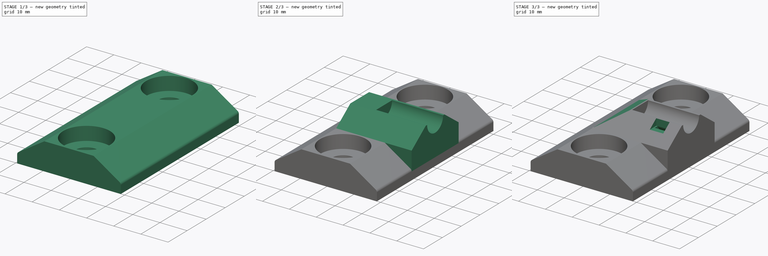
[diagram: build sequence overview — one tinted view per stage of 3, left to right]
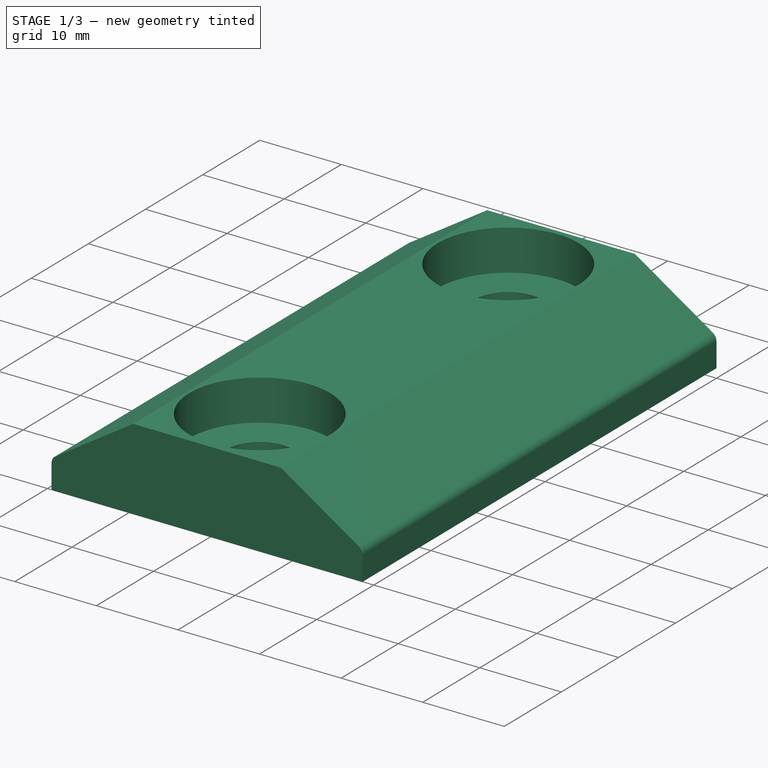
[diagram: stage 1 of 3 — iso view after this stage's code; geometry added in this stage tinted green]
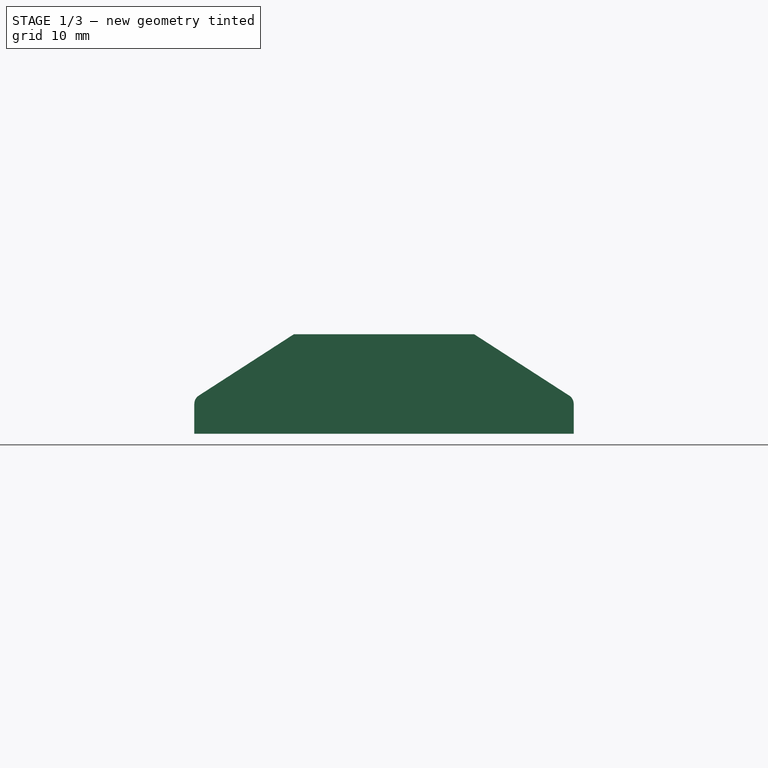
[diagram: stage 1 of 3 — front view after this stage's code; geometry added in this stage tinted green]
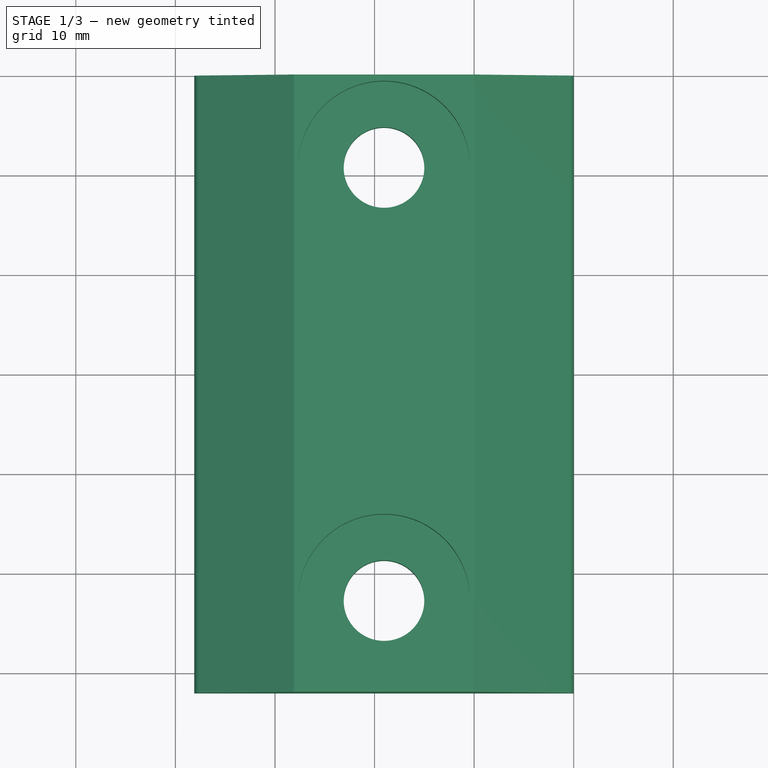
[diagram: stage 1 of 3 — top view after this stage's code; geometry added in this stage tinted green]
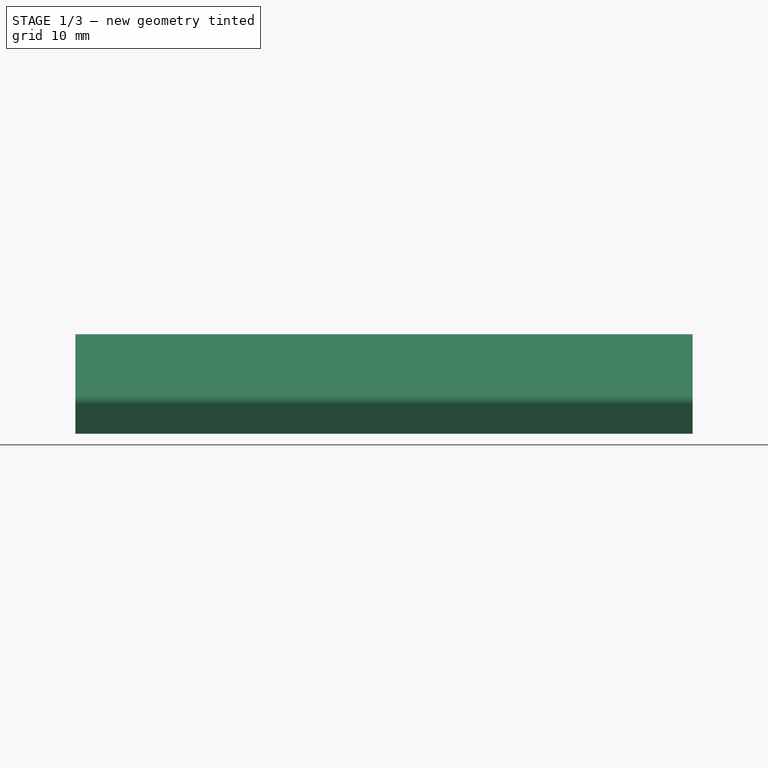
[diagram: stage 1 of 3 — right view after this stage's code; geometry added in this stage tinted green]
FCSTD DOCUMENT  (FreeCAD 0.18R)
Label: y-axis-rod-mount
License: All rights reserved
LicenseURL: http://en.wikipedia.org/wiki/All_rights_reserved
objects: Sketcher::SketchObject×8, PartDesign::Pocket×6, PartDesign::Pad×2, PartDesign::Body×1, Part::Feature×1
note: 26 computed .brp shape members not serialized (recipe doc carries the construction recipe); baked Part::Feature solids carry a one-line shape summary decoded from their .brp

FEATURE [Sketcher::SketchObject] Sketch002  label="Sketch"
  MapMode = 2
  Placement = pos=(0,0,0) rot=(1,0,0;1.5708rad)
  Support = -> [Sketch002]
  sketch-geometry (8):
    g0: LineSegment StartX=-38.1 StartY=3 StartZ=0 EndX=-38.1 EndY=0 EndZ=0
    g1: LineSegment StartX=-28.1 StartY=10 StartZ=0 EndX=-10 EndY=10 EndZ=0
    g2: LineSegment StartX=0 StartY=3 StartZ=0 EndX=0 EndY=0 EndZ=0
    g3: LineSegment StartX=-10 StartY=10 StartZ=0 EndX=-0.457656 EndY=3.84016 EndZ=0
    g4: ArcOfCircle CenterX=-1 CenterY=3 CenterZ=0 NormalX=0 NormalY=0 NormalZ=1 AngleXU=0 Radius=1 StartAngle=0 EndAngle=0.997572
    g5: LineSegment StartX=-38.1 StartY=0 StartZ=0 EndX=0 EndY=0 EndZ=0
    g6: LineSegment StartX=-28.1 StartY=10 StartZ=0 EndX=-37.6423 EndY=3.84016 EndZ=0
    g7: ArcOfCircle CenterX=-37.1 CenterY=3 CenterZ=0 NormalX=0 NormalY=0 NormalZ=1 AngleXU=0 Radius=1 StartAngle=2.14402 EndAngle=3.14159
  constraints (22):
    c: DistanceX(g0,g-1) = 38.1
    c: Vertical(g0)
    c: Horizontal(g1)
    c: DistanceY(g0,g1) = 10
    c: Vertical(g2)
    c: Tangent(g3,g4) = 1.5708
    c: Tangent(g2,g4) = 1.5708
    c: Horizontal(g5)
    c: Coincident(g5,g2)
    c: DistanceY(g2,g-1) = 0
    c: Coincident(g0,g5)
    c: DistanceX(g2,g-1) = 0
    c: Coincident(g3,g1)
    c: DistanceX(g1,g2) = 10
    c: DistanceY(g2,g2) = 3
    c: DistanceX(g4,g2) = 1
    c: Coincident(g6,g1)
    c: Tangent(g6,g7) = -1.5708
    c: Tangent(g0,g7) = -1.5708
    c: DistanceY(g4,g7) = 0
    c: DistanceY(g3,g6) = 0
    c: DistanceX(g0,g1) = 10
FEATURE [PartDesign::Pad] Pad
  Length = 62
  Length2 = 100
  Placement = pos=(0,0,0) rot=(1,0,0;1.5708rad)
  Profile = -> Sketch002
  Type = 0
FEATURE [Sketcher::SketchObject] Sketch003
  MapMode = 5
  Support = -> [XY_Plane002]
  sketch-geometry (2):
    g0: Circle CenterX=-19.05 CenterY=-9.25 CenterZ=0 NormalX=0 NormalY=0 NormalZ=1 AngleXU=0 Radius=4.05
    g1: Circle CenterX=-19.05 CenterY=-52.75 CenterZ=0 NormalX=0 NormalY=0 NormalZ=1 AngleXU=0 Radius=4.05
  constraints (6):
    c: Radius(g0) = 4.05
    c: DistanceX(g0,g-1) = 19.05
    c: DistanceY(g0,g-1) = 9.25
    c: Equal(g1,g0)
    c: DistanceX(g0,g1) = 0
    c: DistanceY(g1,g0) = 43.5
FEATURE [PartDesign::Pocket] Pocket
  BaseFeature = -> Pad
  Length = 10
  Length2 = 100
  Midplane = true
  Placement = pos=(0,0,0) rot=(1,0,0;1.5708rad)
  Profile = -> Sketch003
  Type = 1
FEATURE [Sketcher::SketchObject] Sketch  label="Sketch004"
  AttachmentOffset = pos=(0,0,5) rot=(0,0,1;0rad)
  MapMode = 5
  Placement = pos=(0,0,5) rot=(0,0,1;0rad)
  Support = -> [XY_Plane002]
  sketch-geometry (2):
    g0: Circle CenterX=-19.05 CenterY=-9.25 CenterZ=0 NormalX=0 NormalY=0 NormalZ=1 AngleXU=0 Radius=8.625
    g1: Circle CenterX=-19.05 CenterY=-52.75 CenterZ=0 NormalX=0 NormalY=0 NormalZ=1 AngleXU=0 Radius=8.625
  constraints (6):
    c: Radius(g0) = 8.625
    c: DistanceX(g0,g-1) = 19.05
    c: DistanceY(g0,g-1) = 9.25
    c: Equal(g1,g0)
    c: DistanceX(g1,g0) = 0
    c: DistanceY(g1,g0) = 43.5
FEATURE [PartDesign::Pocket] Pocket001
  BaseFeature = -> Pocket
  Length = 5
  Length2 = 5
  Offset = 5
  Placement = pos=(0,0,0) rot=(1,0,0;1.5708rad)
  Profile = -> Sketch
  Reversed = true
  Type = 0
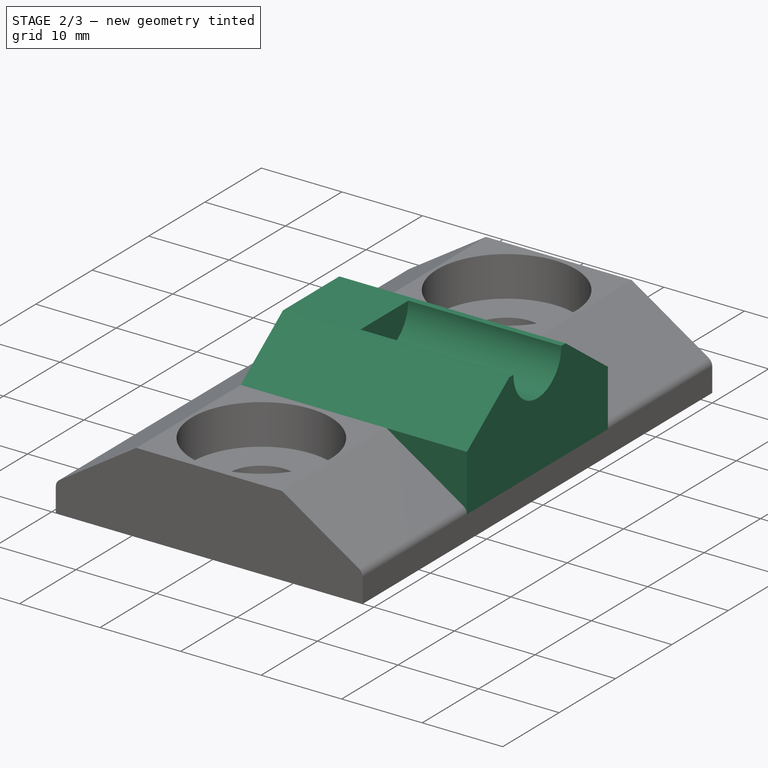
[diagram: stage 2 of 3 — iso view after this stage's code; geometry added in this stage tinted green]
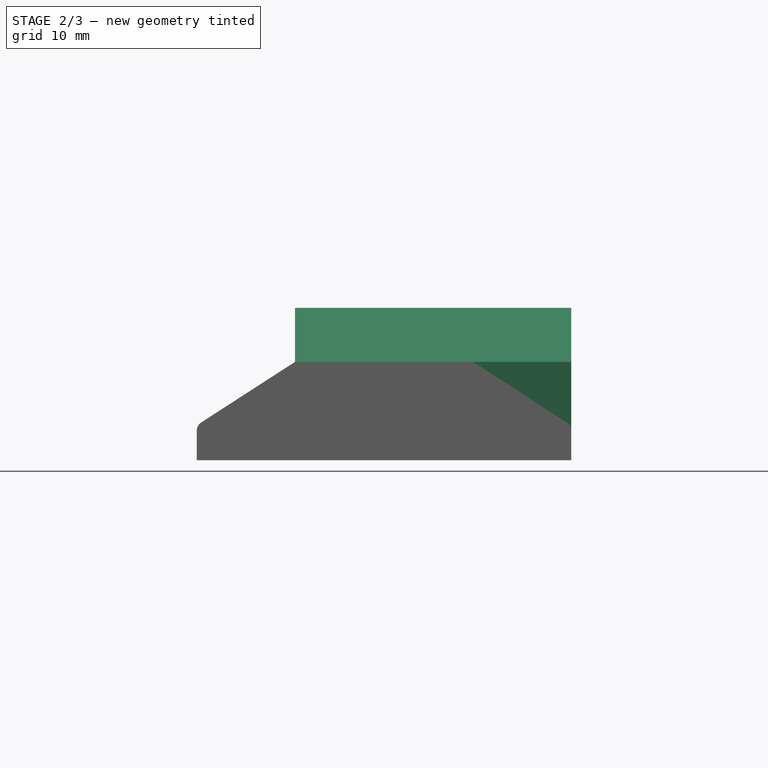
[diagram: stage 2 of 3 — front view after this stage's code; geometry added in this stage tinted green]
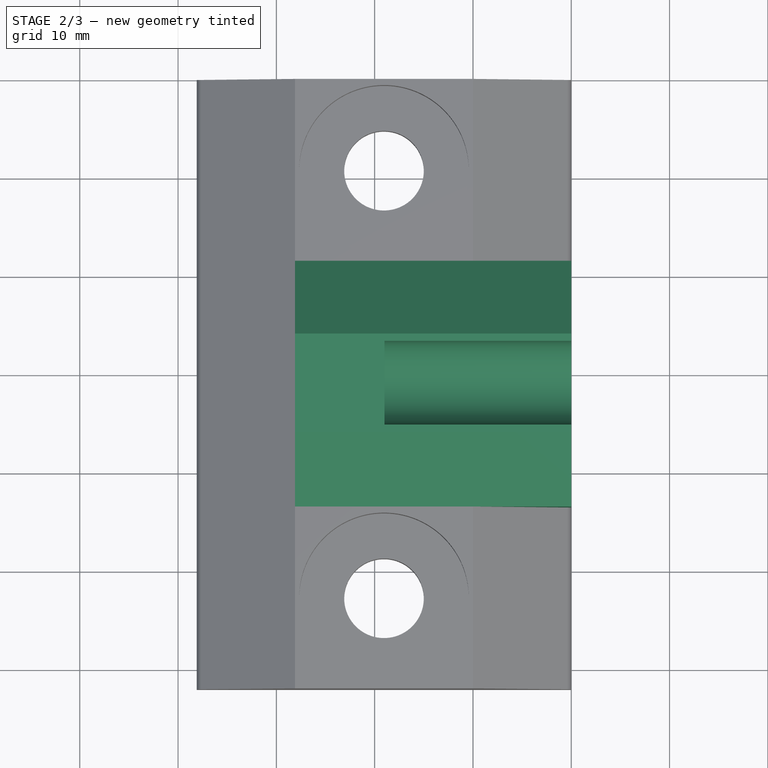
[diagram: stage 2 of 3 — top view after this stage's code; geometry added in this stage tinted green]
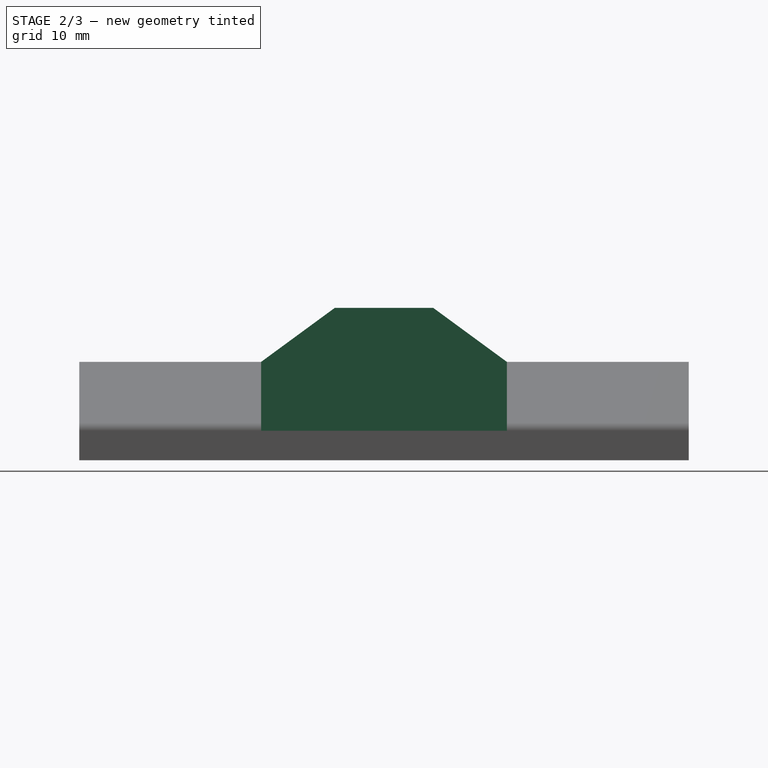
[diagram: stage 2 of 3 — right view after this stage's code; geometry added in this stage tinted green]
FEATURE [Sketcher::SketchObject] Sketch004  label="Sketch005"
  MapMode = 4
  Placement = pos=(0,0,0) rot=(0.57735,0.57735,0.57735;2.0944rad)
  sketch-geometry (6):
    g0: LineSegment StartX=-43.5 StartY=0 StartZ=0 EndX=-43.5 EndY=10 EndZ=0
    g1: LineSegment StartX=-18.5 StartY=10 StartZ=0 EndX=-18.5 EndY=0 EndZ=0
    g2: LineSegment StartX=-43.5 StartY=0 StartZ=0 EndX=-18.5 EndY=0 EndZ=0
    g3: LineSegment StartX=-43.5 StartY=10 StartZ=0 EndX=-36 EndY=15.5 EndZ=0
    g4: LineSegment StartX=-26 StartY=15.5 StartZ=0 EndX=-18.5 EndY=10 EndZ=0
    g5: LineSegment StartX=-36 StartY=15.5 StartZ=0 EndX=-26 EndY=15.5 EndZ=0
  constraints (18):
    c: PointOnObject(g0,g-1)
    c: Vertical(g0)
    c: PointOnObject(g1,g-1)
    c: Vertical(g1)
    c: Coincident(g2,g0)
    c: Equal(g0,g1)
    c: DistanceX(g2,g2) = 25
    c: Coincident(g1,g2)
    c: DistanceX(g1,g-1) = 18.5
    c: DistanceY(g0,g0) = 10
    c: Coincident(g3,g0)
    c: Coincident(g4,g1)
    c: Horizontal(g5)
    c: Coincident(g5,g3)
    c: Equal(g3,g4)
    c: DistanceY(g0,g3) = 15.5
    c: Coincident(g5,g4)
    c: DistanceX(g5,g5) = 10
FEATURE [PartDesign::Pad] Pad001
  BaseFeature = -> Pocket001
  Length = 28.1
  Length2 = 100
  Placement = pos=(0,0,0) rot=(1,0,0;1.5708rad)
  Profile = -> Sketch004
  Reversed = true
  Type = 0
FEATURE [Sketcher::SketchObject] Sketch005  label="Sketch006"
  MapMode = 5
  Placement = pos=(0,0,0) rot=(0.57735,0.57735,0.57735;2.0944rad)
  Support = -> [YZ_Plane002]
  sketch-geometry (2):
    g0: ArcOfCircle CenterX=-31 CenterY=15.5 CenterZ=0 NormalX=0 NormalY=0 NormalZ=1 AngleXU=0 Radius=4.25 StartAngle=3.14159 EndAngle=6.28319
    g1: LineSegment StartX=-35.25 StartY=15.5 StartZ=0 EndX=-26.75 EndY=15.5 EndZ=0
  constraints (7):
    c: DistanceY(g0,g0) = 0
    c: Radius(g0) = 4.25
    c: DistanceX(g0,g-1) = 31
    c: DistanceY(g-1,g0) = 15.5
    c: DistanceY(g0,g0) = 0
    c: Coincident(g1,g0)
    c: Coincident(g1,g0)
FEATURE [PartDesign::Pocket] Pocket002
  BaseFeature = -> Pad001
  Length = 19
  Length2 = 100
  Placement = pos=(0,0,0) rot=(1,0,0;1.5708rad)
  Profile = -> Sketch005
  Type = 0
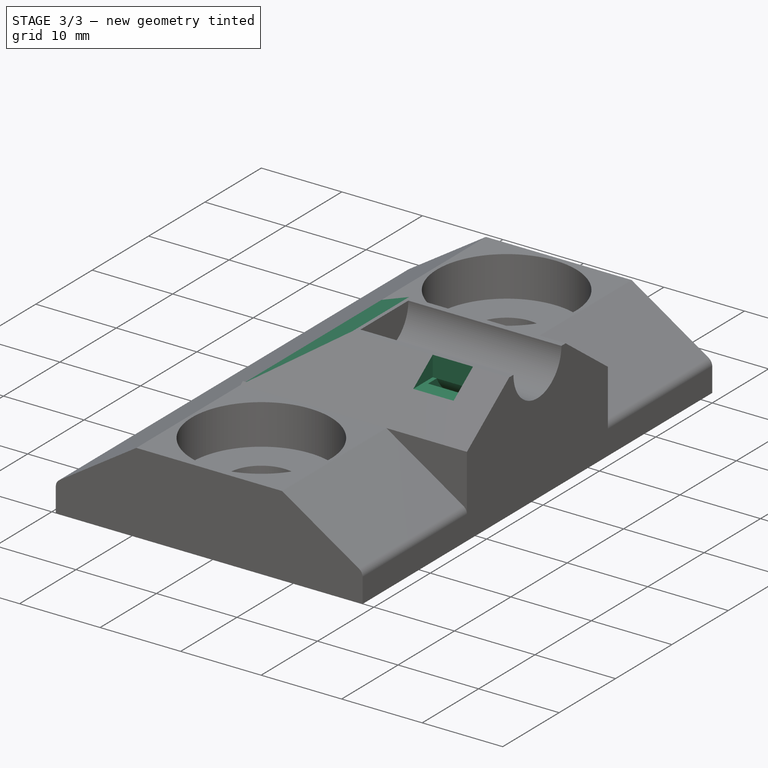
[diagram: stage 3 of 3 — iso view after this stage's code; geometry added in this stage tinted green]
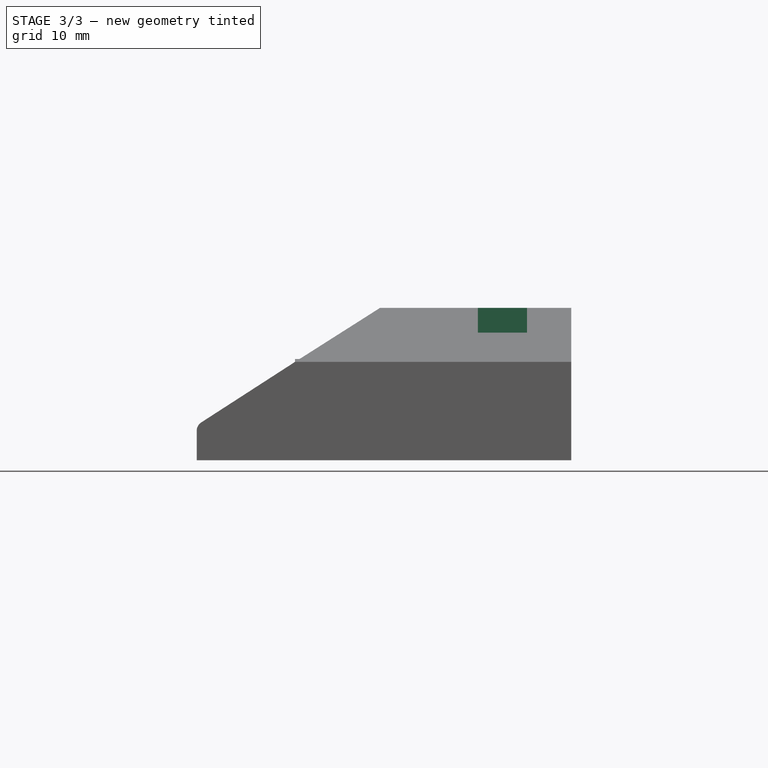
[diagram: stage 3 of 3 — front view after this stage's code; geometry added in this stage tinted green]
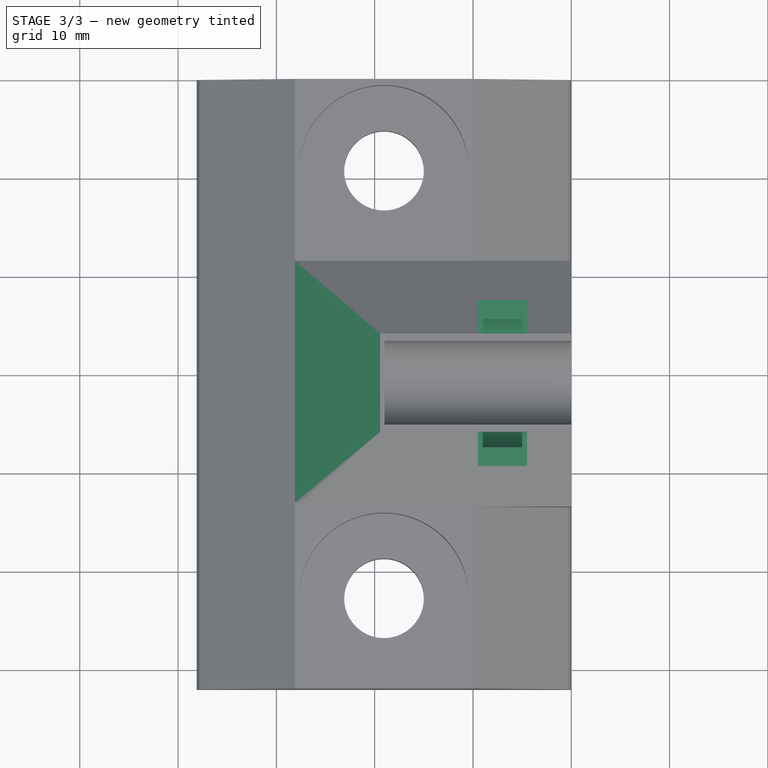
[diagram: stage 3 of 3 — top view after this stage's code; geometry added in this stage tinted green]
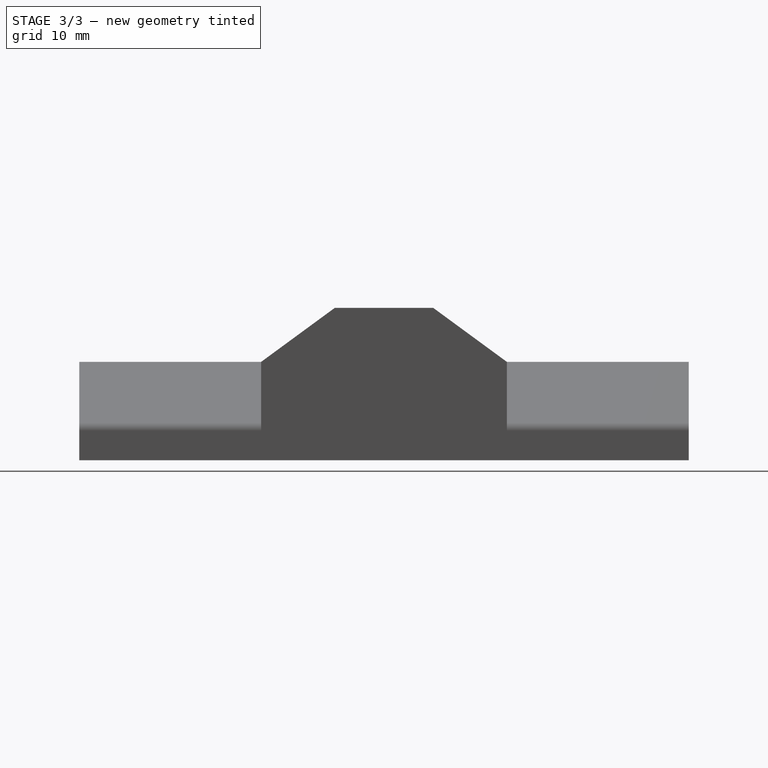
[diagram: stage 3 of 3 — right view after this stage's code; geometry added in this stage tinted green]
FEATURE [Sketcher::SketchObject] Sketch006  label="Sketch007"
  AttachmentOffset = pos=(0,0,-5) rot=(0,0,1;0rad)
  MapMode = 5
  Placement = pos=(-5,1.1e-15,-1.1e-15) rot=(0.57735,0.57735,0.57735;2.0944rad)
  Support = -> [YZ_Plane002]
  sketch-geometry (2):
    g0: Circle CenterX=-31 CenterY=15.5 CenterZ=0 NormalX=0 NormalY=0 NormalZ=1 AngleXU=0 Radius=7
    g1: Circle CenterX=-31 CenterY=15.5 CenterZ=0 NormalX=0 NormalY=0 NormalZ=1 AngleXU=0 Radius=5.6
  constraints (5):
    c: DistanceX(g0,g-1) = 31
    c: DistanceY(g-1,g0) = 15.5
    c: Radius(g0) = 7
    c: Radius(g1) = 5.6
    c: Coincident(g1,g0)
FEATURE [PartDesign::Pocket] Pocket003
  BaseFeature = -> Pocket002
  Length = 4
  Length2 = 100
  Placement = pos=(0,0,0) rot=(1,0,0;1.5708rad)
  Profile = -> Sketch006
  Type = 0
FEATURE [Sketcher::SketchObject] Sketch007  label="Sketch008"
  AttachmentOffset = pos=(0,0,-4.5) rot=(0,0,1;0rad)
  MapMode = 5
  Placement = pos=(-4.5,1e-15,-1e-15) rot=(0.57735,0.57735,0.57735;2.0944rad)
  Support = -> [YZ_Plane002]
  sketch-geometry (8):
    g0: LineSegment StartX=-26 StartY=16.4812 StartZ=0 EndX=-26 EndY=12.98 EndZ=0
    g1: LineSegment StartX=-26 StartY=12.98 StartZ=0 EndX=-22 EndY=12.98 EndZ=0
    g2: LineSegment StartX=-26 StartY=16.4812 StartZ=0 EndX=-22 EndY=16.4812 EndZ=0
    g3: LineSegment StartX=-22 StartY=16.4812 StartZ=0 EndX=-22 EndY=12.98 EndZ=0
    g4: LineSegment StartX=-40 StartY=16.4812 StartZ=0 EndX=-36 EndY=16.4812 EndZ=0
    g5: LineSegment StartX=-36 StartY=16.4812 StartZ=0 EndX=-36 EndY=12.98 EndZ=0
    g6: LineSegment StartX=-36 StartY=12.98 StartZ=0 EndX=-40 EndY=12.98 EndZ=0
    g7: LineSegment StartX=-40 StartY=12.98 StartZ=0 EndX=-40 EndY=16.4812 EndZ=0
  constraints (23):
    c: Vertical(g0)
    c: Horizontal(g1)
    c: Horizontal(g2)
    c: Coincident(g3,g2)
    c: Coincident(g3,g1)
    c: Coincident(g2,g0)
    c: DistanceX(g1,g-1) = 22
    c: Vertical(g3)
    c: DistanceX(g2,g2) = 4
    c: Coincident(g0,g1)
    c: DistanceY(g-1,g1) = 12.98
    c: Coincident(g4,g5)
    c: Coincident(g5,g6)
    c: Coincident(g6,g7)
    c: Coincident(g7,g4)
    c: Horizontal(g4)
    c: Horizontal(g6)
    c: Vertical(g5)
    c: Vertical(g7)
    c: DistanceX(g4,g4) = 4
    c: DistanceY(g0,g4) = 0
    c: DistanceY(g5,g0) = 0
    c: DistanceX(g5,g0) = 10
FEATURE [PartDesign::Pocket] Pocket004
  BaseFeature = -> Pocket003
  Length = 5
  Length2 = 100
  Placement = pos=(0,0,0) rot=(1,0,0;1.5708rad)
  Profile = -> Sketch007
  Type = 0
FEATURE [Sketcher::SketchObject] Sketch008  label="Sketch009"
  AttachmentOffset = pos=(0,0,18.1) rot=(0,0,1;0rad)
  MapMode = 5
  Placement = pos=(0,-18.1,-4e-15) rot=(1,0,0;1.5708rad)
  Support = -> [XZ_Plane002]
  sketch-geometry (3):
    g0: LineSegment StartX=-28.1 StartY=10 StartZ=0 EndX=-18.1 EndY=16.3535 EndZ=0
    g1: LineSegment StartX=-18.1 StartY=16.3535 StartZ=0 EndX=-28.1 EndY=16.3535 EndZ=0
    g2: LineSegment StartX=-28.1 StartY=16.3535 StartZ=0 EndX=-28.1 EndY=10 EndZ=0
  constraints (9):
    c: Horizontal(g1)
    c: Vertical(g2)
    c: Coincident(g1,g2)
    c: Coincident(g2,g0)
    c: DistanceX(g0,g-1) = 18.1
    c: Angle(g0,g2) = 1.00479
    c: DistanceX(g0,g-1) = 28.1
    c: DistanceY(g-1,g0) = 10
    c: Coincident(g0,g1)
FEATURE [PartDesign::Pocket] Pocket005
  BaseFeature = -> Pocket004
  Length = 25
  Length2 = 100
  Placement = pos=(0,0,0) rot=(1,0,0;1.5708rad)
  Profile = -> Sketch008
  Reversed = true
  Type = 0
FEATURE [PartDesign::Body] Body002  label="y-axis-rod-mount"
  Group = -> [Sketch002,Pad,Sketch003,Pocket,Sketch,Pocket001,Sketch004,Pad001,Sketch005,Pocket002,Sketch006,Pocket003,Sketch007,Pocket004,Sketch008,Pocket005]
  Origin = -> Origin002
  Tip = -> Pocket005
FEATURE [Part::Feature] y_stepper_mount
  Placement = pos=(-19.25,-20.5,23) rot=(0,1,0;1.5708rad)
  shape: bbox 47.55 x 25.4 x 80.5 mm, 40 faces (baked)
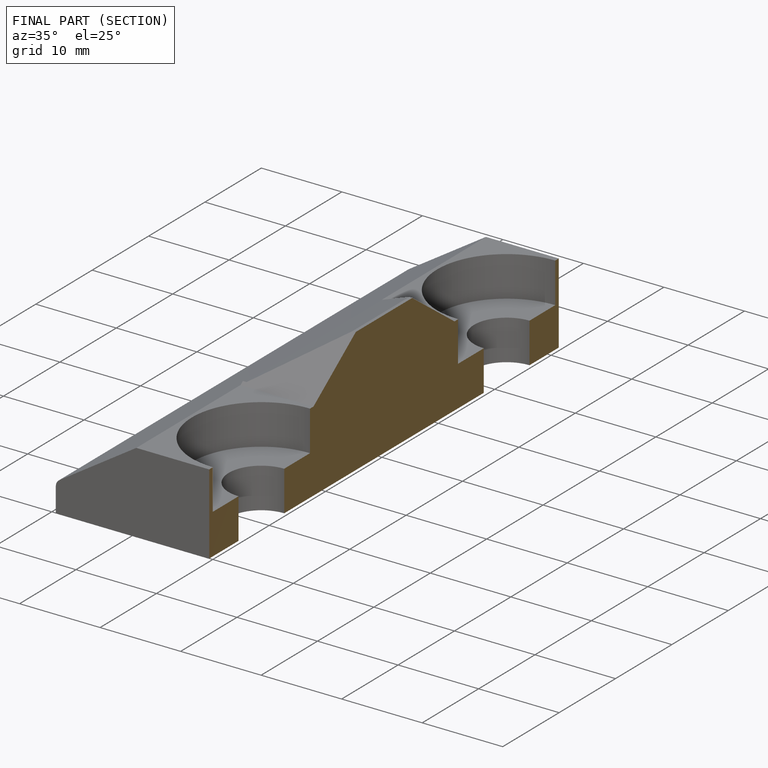
[diagram: finished part — half-section view (interior)]
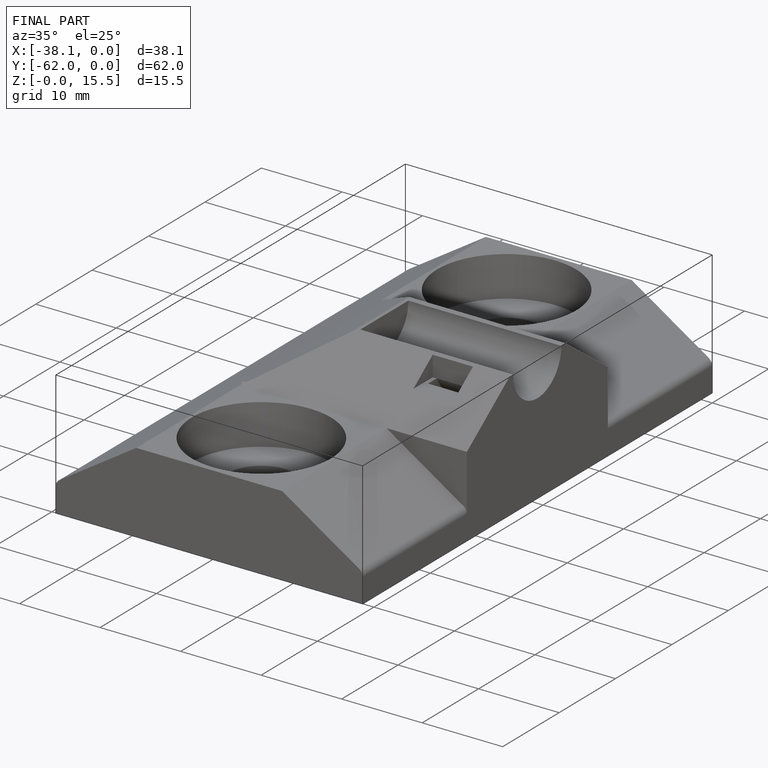
[diagram: finished part — iso view with bounding-box wireframe]
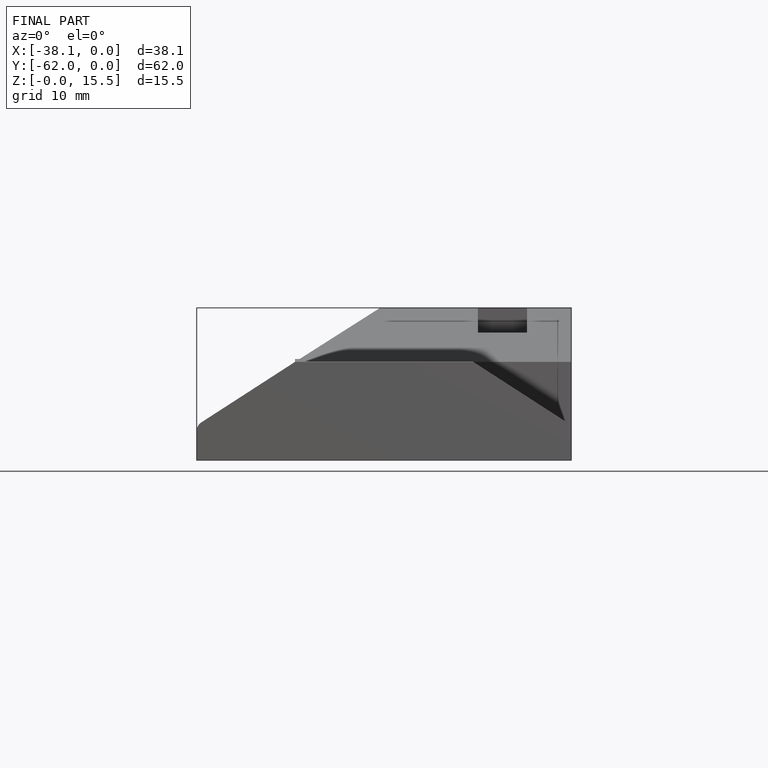
[diagram: finished part — front view with bounding-box wireframe]
